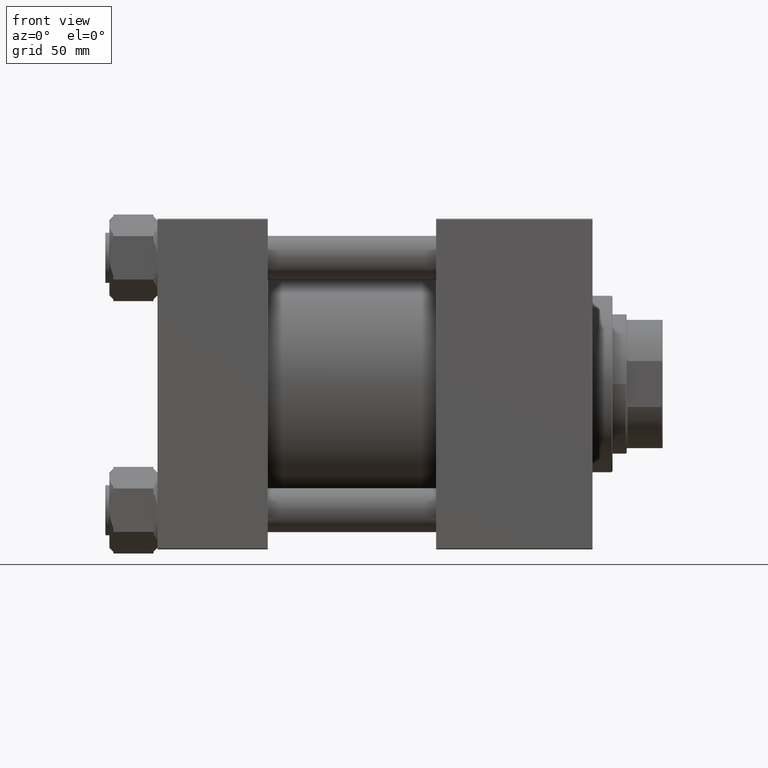
[diagram: clean part render]
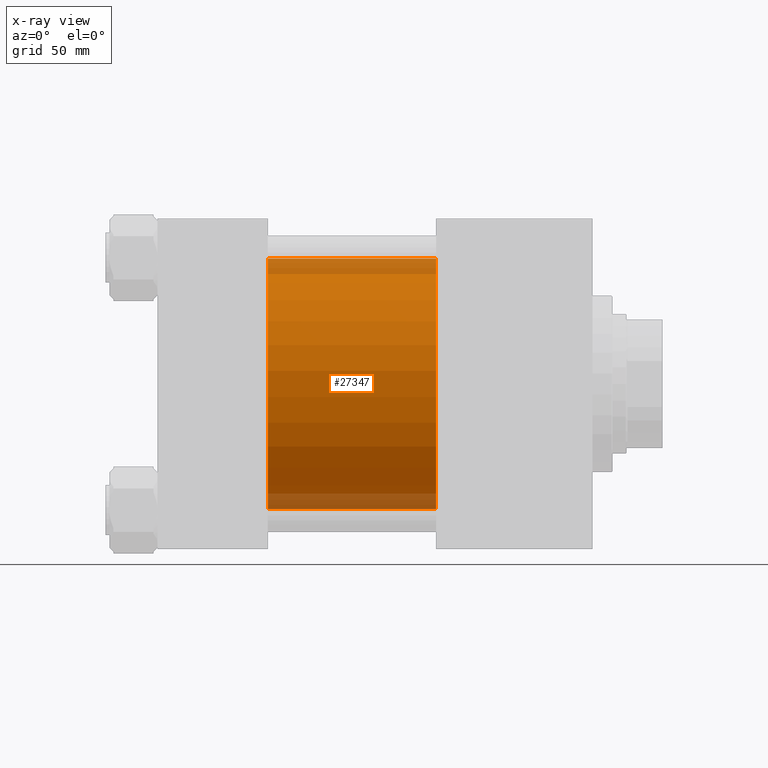
[diagram: x-ray — body ghosted, one internal face saturated and labeled with its STEP entity id]
A machine part, front view, then the same camera in x-ray: the body is ghosted and one INTERNAL B-rep face — a face not visible from any outside direction — is saturated and labeled: STEP entity #27347.
In plain terms, the highlighted cylindrical surface (partial cylindrical patch) has radius 62.5 mm, axis along (-1, -0, -0).
Its self-contained STEP definition (entity closure, byte-faithful):
#552 = DIRECTION ( 'NONE',  ( 0.000000000000000000, 0.000000000000000000, 1.000000000000000000 ) ) ;
#1340 = VECTOR ( 'NONE', #5526, 1000.000000000000000 ) ;
#1993 = AXIS2_PLACEMENT_3D ( 'NONE', #3409, #26534, #30366 ) ;
#2031 = VECTOR ( 'NONE', #32427, 1000.000000000000000 ) ;
#2509 = CARTESIAN_POINT ( 'NONE',  ( 55.00000000000000000, -2.602085213965210642E-15, 62.50000000000000000 ) ) ;
#2700 = DIRECTION ( 'NONE',  ( 0.000000000000000000, 0.000000000000000000, -1.000000000000000000 ) ) ;
#3409 = CARTESIAN_POINT ( 'NONE',  ( 55.00000000000000000, -2.602085213965210642E-15, 0.000000000000000000 ) ) ;
#5158 = DIRECTION ( 'NONE',  ( -1.000000000000000000, -0.000000000000000000, -0.000000000000000000 ) ) ;
#5526 = DIRECTION ( 'NONE',  ( -1.000000000000000000, -0.000000000000000000, -0.000000000000000000 ) ) ;
#9327 = CARTESIAN_POINT ( 'NONE',  ( 139.0000000000000000, -2.602085213965210642E-15, 62.50000000000000000 ) ) ;
#9644 = LINE ( 'NONE', #29645, #1340 ) ;
#9654 = CARTESIAN_POINT ( 'NONE',  ( 55.00000000000000000, 5.051957280705745584E-15, -62.50000000000000000 ) ) ;
#11844 = CIRCLE ( 'NONE', #1993, 62.50000000000000000 ) ;
#13747 = CARTESIAN_POINT ( 'NONE',  ( 139.0000000000000000, 5.051957280705745584E-15, -62.50000000000000000 ) ) ;
#14602 = VERTEX_POINT ( 'NONE', #13747 ) ;
#15280 = VERTEX_POINT ( 'NONE', #2509 ) ;
#16582 = EDGE_CURVE ( 'NONE', #15280, #45591, #11844, .T. ) ;
#16635 = ORIENTED_EDGE ( 'NONE', *, *, #16582, .F. ) ;
#17767 = EDGE_CURVE ( 'NONE', #42221, #15280, #25493, .T. ) ;
#17845 = AXIS2_PLACEMENT_3D ( 'NONE', #50155, #38874, #2700 ) ;
#20860 = EDGE_CURVE ( 'NONE', #14602, #45591, #9644, .T. ) ;
#24178 = FACE_OUTER_BOUND ( 'NONE', #43057, .T. ) ;
#24685 = CARTESIAN_POINT ( 'NONE',  ( 139.0000000000000000, -2.602085213965210642E-15, 0.000000000000000000 ) ) ;
#25493 = LINE ( 'NONE', #9327, #2031 ) ;
#26534 = DIRECTION ( 'NONE',  ( 1.000000000000000000, 0.000000000000000000, 0.000000000000000000 ) ) ;
#27347 = ADVANCED_FACE ( 'NONE', ( #24178 ), #36462, .F. ) ;
#28205 = EDGE_CURVE ( 'NONE', #42221, #14602, #46501, .T. ) ;
#29645 = CARTESIAN_POINT ( 'NONE',  ( 139.0000000000000000, 5.051957280705745584E-15, -62.50000000000000000 ) ) ;
#30366 = DIRECTION ( 'NONE',  ( 0.000000000000000000, 0.000000000000000000, -1.000000000000000000 ) ) ;
#31007 = ORIENTED_EDGE ( 'NONE', *, *, #20860, .T. ) ;
#32427 = DIRECTION ( 'NONE',  ( -1.000000000000000000, -0.000000000000000000, -0.000000000000000000 ) ) ;
#34403 = ORIENTED_EDGE ( 'NONE', *, *, #17767, .F. ) ;
#34418 = CARTESIAN_POINT ( 'NONE',  ( 139.0000000000000000, -2.602085213965210642E-15, 62.50000000000000000 ) ) ;
#36462 = CYLINDRICAL_SURFACE ( 'NONE', #43179, 62.50000000000000000 ) ;
#38874 = DIRECTION ( 'NONE',  ( 1.000000000000000000, 0.000000000000000000, 0.000000000000000000 ) ) ;
#42221 = VERTEX_POINT ( 'NONE', #34418 ) ;
#43057 = EDGE_LOOP ( 'NONE', ( #45086, #31007, #16635, #34403 ) ) ;
#43179 = AXIS2_PLACEMENT_3D ( 'NONE', #24685, #5158, #552 ) ;
#45086 = ORIENTED_EDGE ( 'NONE', *, *, #28205, .T. ) ;
#45591 = VERTEX_POINT ( 'NONE', #9654 ) ;
#46501 = CIRCLE ( 'NONE', #17845, 62.50000000000000000 ) ;
#50155 = CARTESIAN_POINT ( 'NONE',  ( 139.0000000000000000, -2.602085213965210642E-15, 0.000000000000000000 ) ) ;